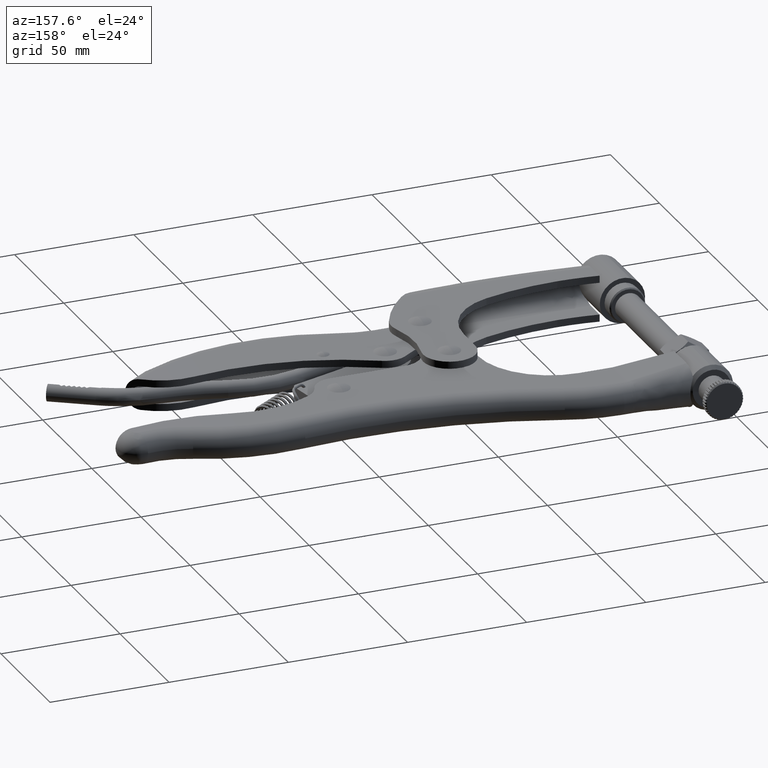
[diagram: clean part render]
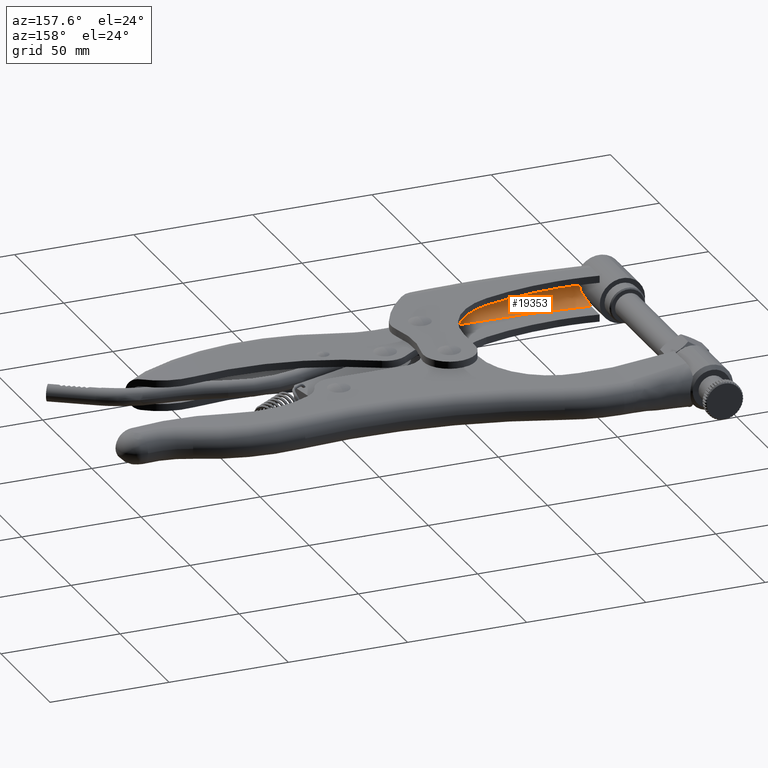
[diagram: same view with one face highlighted and labeled with its STEP entity id]
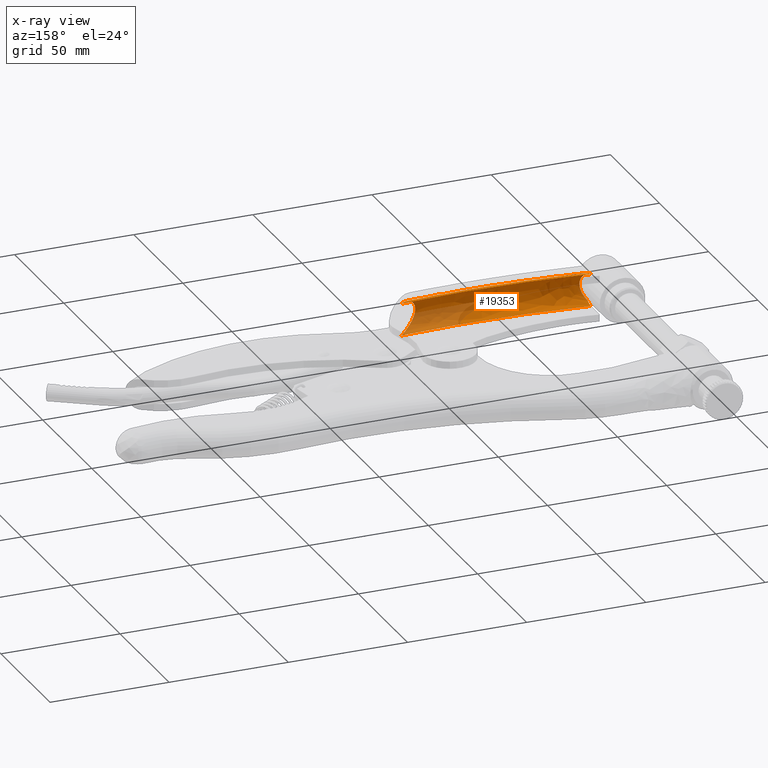
[diagram: x-ray of the same camera — body ghosted, the highlighted face saturated]
A machine part, auxiliary view. The second image highlights one B-rep face of the part: STEP entity #19353.
The next image is the same camera in x-ray: the body ghosted, the highlighted face saturated — about 21% of this face is hidden behind the body in this view.
In plain terms, the highlighted face is a freeform B-spline surface patch.
Its self-contained STEP definition (entity closure, byte-faithful):
#43 = CARTESIAN_POINT ( 'NONE',  ( -10.36433419217116400, -61.06828969026255300, 2.384184272010585000 ) ) ;
#60 = AXIS2_PLACEMENT_3D ( 'NONE', #11213, #25981, #13307 ) ;
#134 = CARTESIAN_POINT ( 'NONE',  ( -3.910821310114831500, -55.84126444270246000, 6.594705788835028700 ) ) ;
#499 = CARTESIAN_POINT ( 'NONE',  ( -10.99999999999997200, -61.51108990453452900, 0.5155578909550142500 ) ) ;
#520 = ORIENTED_EDGE ( 'NONE', *, *, #27255, .F. ) ;
#801 = CARTESIAN_POINT ( 'NONE',  ( -10.99999999999996800, -61.51108990453450800, -0.5155578909554932000 ) ) ;
#838 = CARTESIAN_POINT ( 'NONE',  ( -8.844643885718669600, -59.96093838598348900, -4.191176948658752000 ) ) ;
#1018 = CARTESIAN_POINT ( 'NONE',  ( -79.23884204155049800, -58.88106321117059800, -2.137840279738215000 ) ) ;
#1048 = ORIENTED_EDGE ( 'NONE', *, *, #12152, .T. ) ;
#1054 = ORIENTED_EDGE ( 'NONE', *, *, #23505, .F. ) ;
#1113 = CARTESIAN_POINT ( 'NONE',  ( -79.75686575835536000, -58.04367075261173900, 3.725427093428213000 ) ) ;
#1936 = CARTESIAN_POINT ( 'NONE',  ( -81.00000000000000000, -65.75000000000005700, 6.750000000000021300 ) ) ;
#2159 = CARTESIAN_POINT ( 'NONE',  ( -9.914828028787084700, -60.74800532833253900, 3.055299104044775200 ) ) ;
#2248 = CARTESIAN_POINT ( 'NONE',  ( -2.654880867156749000, -54.64493649216111500, 6.749999999999996400 ) ) ;
#2539 = ORIENTED_EDGE ( 'NONE', *, *, #20291, .F. ) ;
#2671 = CARTESIAN_POINT ( 'NONE',  ( -2.243002730689804400, -54.23403702474016800, -6.750000000000000900 ) ) ;
#2723 = DIRECTION ( 'NONE',  ( -1.000000000000000000, -3.261280134836397300E-016, -1.319989140907601600E-017 ) ) ;
#2941 = CARTESIAN_POINT ( 'NONE',  ( -9.399203655638563900, -60.37315796229970000, -3.658764760771693300 ) ) ;
#3135 = CARTESIAN_POINT ( 'NONE',  ( -79.07753512041404100, -59.13150552016309500, -1.250409096898005900 ) ) ;
#3238 = CARTESIAN_POINT ( 'NONE',  ( -80.07971283144267700, -57.48887040034360800, 4.405711642037397600 ) ) ;
#3495 = CARTESIAN_POINT ( 'NONE',  ( -10.99999999999998900, -61.53724539737645200, 0.1718526303183779700 ) ) ;
#3940 = CARTESIAN_POINT ( 'NONE',  ( -1.770956680267929500, -54.19633329901859800, -6.750000000000000000 ) ) ;
#4033 = CARTESIAN_POINT ( 'NONE',  ( -28.20025337157781900, -56.32396021706121300, 6.750000000000000900 ) ) ;
#4167 = CARTESIAN_POINT ( 'NONE',  ( -10.96493358695217400, -61.48697029762656300, 0.8071779605847851900 ) ) ;
#4248 = CARTESIAN_POINT ( 'NONE',  ( -9.226410351807492900, -60.24709032197595300, 3.854293473252418300 ) ) ;
#4839 = VERTEX_POINT ( 'NONE', #16915 ) ;
#4902 = CARTESIAN_POINT ( 'NONE',  ( -80.99999999999998600, -52.25000000000002800, 6.750000000000000000 ) ) ;
#5036 = CARTESIAN_POINT ( 'NONE',  ( -9.910529557676897000, -60.74491911071344000, -3.061075584242013600 ) ) ;
#5140 = CARTESIAN_POINT ( 'NONE',  ( -80.77858747705674600, -56.16728932756332400, -5.546162386711404900 ) ) ;
#5227 = CARTESIAN_POINT ( 'NONE',  ( -79.00013243142058200, -59.25023950676366300, -0.3159349951534483100 ) ) ;
#5315 = CARTESIAN_POINT ( 'NONE',  ( -80.54221663172509700, -56.63842009756814400, 5.208936728629966600 ) ) ;
#5344 = DIRECTION ( 'NONE',  ( 1.319989140907711600E-017, 1.913813176681418400E-018, -1.000000000000000000 ) ) ;
#5631 = B_SPLINE_CURVE_WITH_KNOTS ( 'NONE', 3,
 ( #2671, #11144, #19617, #7048, #21767, #9131, #23901, #11232, #26004, #13326, #838, #15474, #2941, #17593, #5036, #19703, #7138, #21872, #9229, #23984, #11337, #26103 ),
 .UNSPECIFIED., .F., .F.,
 ( 4, 2, 2, 2, 2, 2, 2, 2, 2, 2, 4 ),
 ( 2.392429119749189800E-016, 0.003445251781699046500, 0.005167877672548449600, 0.006890503563397853600, 0.008613129454247258500, 0.009474442399671960000, 0.01033575534509666000, 0.01119706829052136100, 0.01205838123594606500, 0.01291969418137076800, 0.01378100712679547100 ),
 .UNSPECIFIED. ) ;
#6038 = CARTESIAN_POINT ( 'NONE',  ( -54.70705449611431700, -55.67279660940599200, -6.750000000000001800 ) ) ;
#6137 = CARTESIAN_POINT ( 'NONE',  ( -81.00000000000000000, -52.25000000000002100, 6.749999999999999100 ) ) ;
#6284 = CARTESIAN_POINT ( 'NONE',  ( -80.99999999999998600, -55.65036762718630600, -5.830951894843901000 ) ) ;
#6339 = CARTESIAN_POINT ( 'NONE',  ( -8.269933806513959600, -59.52357324584572500, 4.656376325061488700 ) ) ;
#6430 = VERTEX_POINT ( 'NONE', #4902 ) ;
#6779 = EDGE_LOOP ( 'NONE', ( #17810, #14076, #7241, #520, #2539, #16248, #1054, #1048 ) ) ;
#7048 = CARTESIAN_POINT ( 'NONE',  ( -5.157842008311157600, -56.96588564515688800, -6.270008417544255900 ) ) ;
#7138 = CARTESIAN_POINT ( 'NONE',  ( -10.36404076396224400, -61.06808050626250400, -2.384557095703180500 ) ) ;
#7241 = ORIENTED_EDGE ( 'NONE', *, *, #16627, .T. ) ;
#7327 = CARTESIAN_POINT ( 'NONE',  ( -79.01506428436574900, -59.22746082865910500, 0.6183599816674446600 ) ) ;
#7432 = CARTESIAN_POINT ( 'NONE',  ( -80.99999999999998600, -55.65036762718683100, 5.830951894843583900 ) ) ;
#8154 = CARTESIAN_POINT ( 'NONE',  ( 1.040355853010608300, -67.40036760070957200, -6.750000000000000000 ) ) ;
#8372 = EDGE_CURVE ( 'NONE', #14466, #17430, #19003, .T. ) ;
#8414 = CARTESIAN_POINT ( 'NONE',  ( -2.243002730689804400, -54.23403702474016800, 6.750000000000000000 ) ) ;
#8450 = CARTESIAN_POINT ( 'NONE',  ( -7.668149719408415200, -59.05425478879212200, 5.073079831209004600 ) ) ;
#9131 = CARTESIAN_POINT ( 'NONE',  ( -6.422782678434282700, -58.04705146627166800, -5.768053906714595100 ) ) ;
#9223 = AXIS2_PLACEMENT_3D ( 'NONE', #11831, #26633, #13946 ) ;
#9229 = CARTESIAN_POINT ( 'NONE',  ( -10.72609064329423800, -61.32172566275574600, -1.635097634785946700 ) ) ;
#9329 = CARTESIAN_POINT ( 'NONE',  ( -80.08342931134507100, -57.49084568747981200, -4.429083125973500400 ) ) ;
#9422 = CARTESIAN_POINT ( 'NONE',  ( -79.12133983996163500, -59.06406013075213900, 1.542867183134146100 ) ) ;
#10235 = CARTESIAN_POINT ( 'NONE',  ( -53.76130639060998800, -69.17279660940602100, -6.750000000000000000 ) ) ;
#10471 = CARTESIAN_POINT ( 'NONE',  ( -10.90163335940004600, -61.44339989381677500, 1.087154249361496700 ) ) ;
#10489 = VERTEX_POINT ( 'NONE', #6284 ) ;
#10552 = CARTESIAN_POINT ( 'NONE',  ( -6.432644543674725500, -58.06366306084735400, 5.798645676256883000 ) ) ;
#10780 = CARTESIAN_POINT ( 'NONE',  ( -80.99999999999998600, -55.65036762718683100, 5.830951894843583900 ) ) ;
#10830 = VERTEX_POINT ( 'NONE', #18641 ) ;
#11027 = CIRCLE ( 'NONE', #60, 6.750000000000000000 ) ;
#11144 = CARTESIAN_POINT ( 'NONE',  ( -3.067792250248144700, -55.05686675109576800, -6.749999999999993800 ) ) ;
#11213 = CARTESIAN_POINT ( 'NONE',  ( -80.99999999999998600, -52.25000000000002800, -7.355070736225687200E-016 ) ) ;
#11232 = CARTESIAN_POINT ( 'NONE',  ( -7.662879497965433600, -59.05223768649464200, -5.085501084943032900 ) ) ;
#11337 = CARTESIAN_POINT ( 'NONE',  ( -10.96500729516606900, -61.48702099608667700, -0.8065649867278675800 ) ) ;
#11429 = CARTESIAN_POINT ( 'NONE',  ( -79.56346447805408700, -58.36322170558568700, -3.234093089236842000 ) ) ;
#11514 = CARTESIAN_POINT ( 'NONE',  ( -79.30754713517377800, -58.77329798104420200, 2.414783509388364700 ) ) ;
#11807 = B_SPLINE_CURVE_WITH_KNOTS ( 'NONE', 3,
 ( #25150, #4167, #10471, #25245, #12534, #43, #14681, #2159, #16782, #4248, #18907, #6339, #21032, #8450, #23189, #10552, #25318, #12625, #134, #14754, #2248, #16868 ),
 .UNSPECIFIED., .F., .F.,
 ( 4, 2, 2, 2, 2, 2, 2, 2, 2, 2, 4 ),
 ( 3.483463292698104800E-016, 0.0008694500107557698800, 0.001738900021511191300, 0.002608350032266611900, 0.003477800043022032600, 0.005216700064532875900, 0.006086150075288305300, 0.006955600086043734800, 0.01043340012906543100, 0.01217230015057628600, 0.01391120017208714200 ),
 .UNSPECIFIED. ) ;
#11831 = CARTESIAN_POINT ( 'NONE',  ( -32.14158415116202900, 323.0663894662831700, 6.750000000000000900 ) ) ;
#12152 = EDGE_CURVE ( 'NONE', #4839, #10830, #23305, .T. ) ;
#12328 = CARTESIAN_POINT ( 'NONE',  ( 1.040355853010605600, -67.40036760070957200, 6.750000000000022200 ) ) ;
#12518 = CIRCLE ( 'NONE', #18508, 6.750000000000000000 ) ;
#12534 = CARTESIAN_POINT ( 'NONE',  ( -10.61756927537160800, -61.24618239358184000, 1.890860755786177800 ) ) ;
#12625 = CARTESIAN_POINT ( 'NONE',  ( -4.334215434509986600, -56.22980732441411800, 6.503032544306993400 ) ) ;
#13307 = DIRECTION ( 'NONE',  ( 0.0000000000000000000, 0.0000000000000000000, -1.000000000000000000 ) ) ;
#13326 = CARTESIAN_POINT ( 'NONE',  ( -8.651497843579324600, -59.81515675008974100, -4.355637725533738600 ) ) ;
#13514 = CARTESIAN_POINT ( 'NONE',  ( -79.31053847822950300, -58.76857267454270300, -2.425996831723608700 ) ) ;
#13617 = CARTESIAN_POINT ( 'NONE',  ( -79.56153333557701000, -58.36636786271954900, 3.228779503909503300 ) ) ;
#13946 = DIRECTION ( 'NONE',  ( 3.300016708467876400E-016, -1.000000000000000000, -2.291678269769358600E-018 ) ) ;
#14076 = ORIENTED_EDGE ( 'NONE', *, *, #20529, .T. ) ;
#14147 = VERTEX_POINT ( 'NONE', #8414 ) ;
#14324 = EDGE_CURVE ( 'NONE', #10830, #10489, #12518, .T. ) ;
#14457 = CARTESIAN_POINT ( 'NONE',  ( -53.76130639060998800, -69.17279660940602100, 6.750000000000021300 ) ) ;
#14466 = VERTEX_POINT ( 'NONE', #801 ) ;
#14681 = CARTESIAN_POINT ( 'NONE',  ( -10.22232997133607500, -60.96783034466186300, 2.615765914591566200 ) ) ;
#14754 = CARTESIAN_POINT ( 'NONE',  ( -3.070828213847272400, -55.04847063535019200, 6.718098668539310500 ) ) ;
#15254 = CARTESIAN_POINT ( 'NONE',  ( -80.99999999999998600, -52.25000000000002800, -7.355070736225687200E-016 ) ) ;
#15474 = CARTESIAN_POINT ( 'NONE',  ( -9.218481248908347000, -60.23991899898484800, -3.842670602208916500 ) ) ;
#15675 = CARTESIAN_POINT ( 'NONE',  ( -79.12273000468775300, -59.06190997289121500, -1.551197997690754200 ) ) ;
#15763 = CARTESIAN_POINT ( 'NONE',  ( -79.86126826447521400, -57.86789872587608800, 3.960283458969954000 ) ) ;
#16216 = CARTESIAN_POINT ( 'NONE',  ( -10.99999999999997200, -61.53724539737644500, -0.1718526303185571900 ) ) ;
#16248 = ORIENTED_EDGE ( 'NONE', *, *, #8372, .F. ) ;
#16474 = CARTESIAN_POINT ( 'NONE',  ( -28.20025337157781900, -56.32396021706122700, -6.750000000000000900 ) ) ;
#16538 = AXIS2_PLACEMENT_3D ( 'NONE', #17896, #5344, #20017 ) ;
#16574 = CARTESIAN_POINT ( 'NONE',  ( -1.770956680267931700, -54.19633329901859000, 6.750000000000000000 ) ) ;
#16627 = EDGE_CURVE ( 'NONE', #21061, #6430, #11027, .T. ) ;
#16782 = CARTESIAN_POINT ( 'NONE',  ( -9.748462584362490800, -60.62800813155314500, 3.264087025357604900 ) ) ;
#16868 = CARTESIAN_POINT ( 'NONE',  ( -2.243002730689804400, -54.23403702474016800, 6.750000000000000000 ) ) ;
#16915 = CARTESIAN_POINT ( 'NONE',  ( -2.243002730689804400, -54.23403702474016800, -6.750000000000000900 ) ) ;
#17225 = FACE_OUTER_BOUND ( 'NONE', #6779, .T. ) ;
#17358 = DIRECTION ( 'NONE',  ( 0.0000000000000000000, 0.0000000000000000000, -1.000000000000000000 ) ) ;
#17430 = VERTEX_POINT ( 'NONE', #499 ) ;
#17593 = CARTESIAN_POINT ( 'NONE',  ( -9.745208147594617300, -60.62564515278415900, -3.267941196481146900 ) ) ;
#17774 = CARTESIAN_POINT ( 'NONE',  ( -79.01600403042242200, -59.22602393034802800, -0.6326039564149538200 ) ) ;
#17810 = ORIENTED_EDGE ( 'NONE', *, *, #14324, .T. ) ;
#17862 = CARTESIAN_POINT ( 'NONE',  ( -80.19440526118499700, -57.28442830073586800, 4.617296885556291900 ) ) ;
#17896 = CARTESIAN_POINT ( 'NONE',  ( -32.14158415116202900, 323.0663894662831700, -6.749999999999999100 ) ) ;
#18451 = B_SPLINE_CURVE_WITH_KNOTS ( 'NONE', 3,
 ( #19816, #5140, #21971, #9329, #24092, #11429, #26211, #13514, #1018, #15675, #3135, #17774, #5227, #19910, #7327, #22056, #9422, #24191, #11514, #26290, #13617, #1113, #15763, #3238, #17862, #5315, #19995, #7432 ),
 .UNSPECIFIED., .F., .F.,
 ( 4, 2, 2, 2, 2, 2, 2, 2, 2, 2, 2, 2, 2, 4 ),
 ( 5.824771610060385200E-016, 0.001865793441286557800, 0.003731586882572533100, 0.004664483603215521500, 0.005597380323858509300, 0.006530277044501497200, 0.007463173765144484300, 0.008396070485787473000, 0.009328967206430460000, 0.01026186392707344700, 0.01119476064771643600, 0.01212765736835942500, 0.01306055408900241200, 0.01492634753028840000 ),
 .UNSPECIFIED. ) ;
#18508 = AXIS2_PLACEMENT_3D ( 'NONE', #15254, #2723, #17358 ) ;
#18641 = CARTESIAN_POINT ( 'NONE',  ( -80.99999999999998600, -52.25000000000002800, -6.750000000000000000 ) ) ;
#18679 = CARTESIAN_POINT ( 'NONE',  ( -54.70705449611431700, -55.67279660940597800, 6.750000000000000000 ) ) ;
#18907 = CARTESIAN_POINT ( 'NONE',  ( -8.853044986678378700, -59.96909906188634700, 4.196266865372615000 ) ) ;
#19003 = B_SPLINE_CURVE_WITH_KNOTS ( 'NONE', 3,
 ( #24586, #16216, #3495, #24489 ),
 .UNSPECIFIED., .F., .F.,
 ( 4, 4 ),
 ( 3.019503050372129800E-016, 0.001031115781910205400 ),
 .UNSPECIFIED. ) ;
#19353 = ADVANCED_FACE ( 'NONE', ( #17225 ), #19619, .F. ) ;
#19617 = CARTESIAN_POINT ( 'NONE',  ( -3.899813427050971000, -55.84118800608288100, -6.624840818302537600 ) ) ;
#19619 =( BOUNDED_SURFACE ( )  B_SPLINE_SURFACE ( 3, 3, ( 
 ( #3940, #16474, #6038, #20730 ),
 ( #8154, #22890, #10235, #25002 ),
 ( #12328, #27131, #14457, #1936 ),
 ( #16574, #4033, #18679, #6137 ) ),
 .UNSPECIFIED., .F., .F., .T. ) 
 B_SPLINE_SURFACE_WITH_KNOTS ( ( 4, 4 ),
 ( 4, 4 ),
 ( 0.0000000000000000000, 1.000000000000000000 ),
 ( 0.0000000000000000000, 1.000000000000000000 ),
 .UNSPECIFIED. ) 
 GEOMETRIC_REPRESENTATION_ITEM ( )  RATIONAL_B_SPLINE_SURFACE ( (
 ( 1.000000000000000000, 0.9963360340049017800, 0.9963360340049017800, 1.000000000000000000),
 ( 0.3333333333333327600, 0.3321120113349667100, 0.3321120113349667100, 0.3333333333333327600),
 ( 0.3333333333333327600, 0.3321120113349667100, 0.3321120113349667100, 0.3333333333333327600),
 ( 1.000000000000000000, 0.9963360340049017800, 0.9963360340049017800, 1.000000000000000000) ) ) 
 REPRESENTATION_ITEM ( '' )  SURFACE ( )  );
#19703 = CARTESIAN_POINT ( 'NONE',  ( -10.22086739830460000, -60.96679789837807600, -2.618217315578792900 ) ) ;
#19816 = CARTESIAN_POINT ( 'NONE',  ( -80.99999999999998600, -55.65036762718630600, -5.830951894843901000 ) ) ;
#19910 = CARTESIAN_POINT ( 'NONE',  ( -78.99986925916550700, -59.25064191028606300, 0.3079198739309798600 ) ) ;
#19995 = CARTESIAN_POINT ( 'NONE',  ( -80.77852449765943300, -56.16743636268442000, 5.546081380129958700 ) ) ;
#20017 = DIRECTION ( 'NONE',  ( 3.300016708467876400E-016, -1.000000000000000000, -2.291678269769358600E-018 ) ) ;
#20291 = EDGE_CURVE ( 'NONE', #17430, #14147, #11807, .T. ) ;
#20303 = CIRCLE ( 'NONE', #9223, 378.4832057057020600 ) ;
#20529 = EDGE_CURVE ( 'NONE', #10489, #21061, #18451, .T. ) ;
#20730 = CARTESIAN_POINT ( 'NONE',  ( -81.00000000000000000, -52.25000000000003600, -6.750000000000000900 ) ) ;
#21032 = CARTESIAN_POINT ( 'NONE',  ( -8.071571759986454700, -59.37021264544295500, 4.800677425311087100 ) ) ;
#21061 = VERTEX_POINT ( 'NONE', #10780 ) ;
#21767 = CARTESIAN_POINT ( 'NONE',  ( -5.578790205451325900, -57.33207250296254600, -6.123276878504885400 ) ) ;
#21872 = CARTESIAN_POINT ( 'NONE',  ( -10.61620130474897100, -61.24522445725837400, -1.893723172548512600 ) ) ;
#21971 = CARTESIAN_POINT ( 'NONE',  ( -80.54333215246933300, -56.63604828258172600, -5.210266428694533000 ) ) ;
#22056 = CARTESIAN_POINT ( 'NONE',  ( -79.07567052173206400, -59.13437609778376500, 1.236280098396919300 ) ) ;
#22890 = CARTESIAN_POINT ( 'NONE',  ( -26.31395494391692200, -69.72494218559134500, -6.750000000000000000 ) ) ;
#23189 = CARTESIAN_POINT ( 'NONE',  ( -7.462550807360267800, -58.89121545574007400, 5.201437287776088600 ) ) ;
#23305 = CIRCLE ( 'NONE', #16538, 378.4832057057020600 ) ;
#23505 = EDGE_CURVE ( 'NONE', #4839, #14466, #5631, .T. ) ;
#23901 = CARTESIAN_POINT ( 'NONE',  ( -6.842439545821381600, -58.39288815760432500, -5.560789260392774700 ) ) ;
#23984 = CARTESIAN_POINT ( 'NONE',  ( -10.90158361556187200, -61.44336872357637700, -1.088155881158970700 ) ) ;
#24092 = CARTESIAN_POINT ( 'NONE',  ( -79.85651277144332000, -57.87896016094876500, -3.977968012597646200 ) ) ;
#24191 = CARTESIAN_POINT ( 'NONE',  ( -79.23715359240765100, -58.88370765954231000, 2.130582542788894300 ) ) ;
#24489 = CARTESIAN_POINT ( 'NONE',  ( -10.99999999999997200, -61.51108990453452900, 0.5155578909550142500 ) ) ;
#24586 = CARTESIAN_POINT ( 'NONE',  ( -10.99999999999996800, -61.51108990453450800, -0.5155578909554932000 ) ) ;
#25002 = CARTESIAN_POINT ( 'NONE',  ( -81.00000000000000000, -65.75000000000005700, -6.750000000000000000 ) ) ;
#25150 = CARTESIAN_POINT ( 'NONE',  ( -10.99999999999997200, -61.51108990453452900, 0.5155578909550142500 ) ) ;
#25245 = CARTESIAN_POINT ( 'NONE',  ( -10.72868734682091800, -61.32352882885930300, 1.627838506279936800 ) ) ;
#25318 = CARTESIAN_POINT ( 'NONE',  ( -5.595696166322848200, -57.35680512441457100, 6.145034122718978000 ) ) ;
#25981 = DIRECTION ( 'NONE',  ( -1.000000000000000000, -3.261280134836397300E-016, -1.319989140907601600E-017 ) ) ;
#26004 = CARTESIAN_POINT ( 'NONE',  ( -8.065388362074820300, -59.36718784077707800, -4.817076856495355700 ) ) ;
#26103 = CARTESIAN_POINT ( 'NONE',  ( -10.99999999999996800, -61.51108990453450800, -0.5155578909554932000 ) ) ;
#26211 = CARTESIAN_POINT ( 'NONE',  ( -79.47297422077525700, -58.50944110305879100, -2.973965243382304300 ) ) ;
#26290 = CARTESIAN_POINT ( 'NONE',  ( -79.47008209069855400, -58.51409996019871300, 2.965291152744197000 ) ) ;
#26633 = DIRECTION ( 'NONE',  ( 1.319989140907711600E-017, 1.913813176681418400E-018, -1.000000000000000000 ) ) ;
#27131 = CARTESIAN_POINT ( 'NONE',  ( -26.31395494391692600, -69.72494218559133100, 6.750000000000022200 ) ) ;
#27255 = EDGE_CURVE ( 'NONE', #14147, #6430, #20303, .T. ) ;